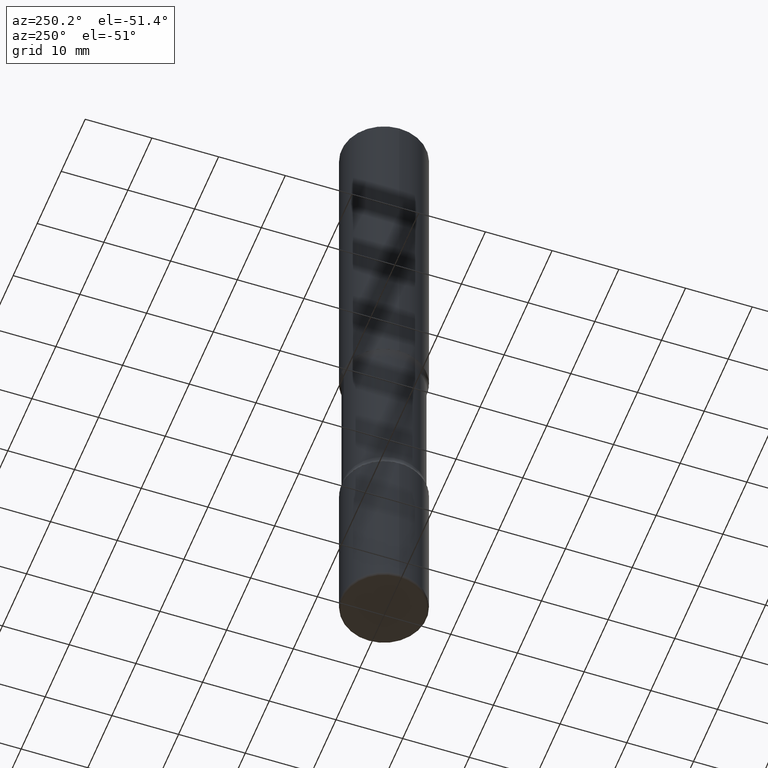
[diagram: clean part render]
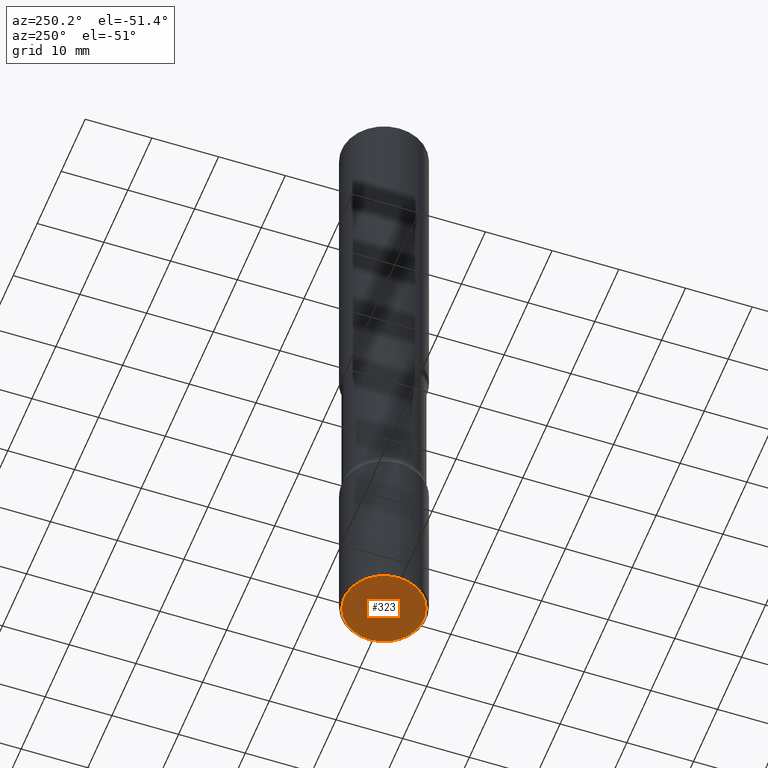
[diagram: same view with one face highlighted and labeled with its STEP entity id]
A machine part, auxiliary view. The second image highlights one B-rep face of the part: STEP entity #323.
In plain terms, the highlighted planar face has unit normal (0, -0, -1).
Its self-contained STEP definition (entity closure, byte-faithful):
#43 = FACE_OUTER_BOUND ( 'NONE', #333, .T. ) ;
#123 = DIRECTION ( 'NONE',  ( 1.000000000000000000, -6.982962677686268288E-15, 0.000000000000000000 ) ) ;
#141 = AXIS2_PLACEMENT_3D ( 'NONE', #339, #168, #386 ) ;
#148 = CIRCLE ( 'NONE', #428, 0.2350000000000003753 ) ;
#154 = DIRECTION ( 'NONE',  ( -2.445468806185136597E-29, 3.491481338843145583E-15, 1.000000000000000000 ) ) ;
#167 = ORIENTED_EDGE ( 'NONE', *, *, #513, .F. ) ;
#168 = DIRECTION ( 'NONE',  ( 2.438088387897960049E-29, -3.491481338843145188E-15, -1.000000000000000000 ) ) ;
#189 = EDGE_CURVE ( 'NONE', #444, #346, #367, .T. ) ;
#201 = ORIENTED_EDGE ( 'NONE', *, *, #189, .F. ) ;
#224 = AXIS2_PLACEMENT_3D ( 'NONE', #374, #154, #123 ) ;
#323 = ADVANCED_FACE ( 'NONE', ( #43 ), #424, .T. ) ;
#333 = EDGE_LOOP ( 'NONE', ( #201, #167 ) ) ;
#339 = CARTESIAN_POINT ( 'NONE',  ( 3.287784133380669782E-29, -2.326583341891048903E-14, -4.000000000000000000 ) ) ;
#346 = VERTEX_POINT ( 'NONE', #476 ) ;
#367 = CIRCLE ( 'NONE', #224, 0.2350000000000003753 ) ;
#374 = CARTESIAN_POINT ( 'NONE',  ( 9.781875224740547508E-29, -1.396592535537258391E-14, -4.000000000000000888 ) ) ;
#375 = CARTESIAN_POINT ( 'NONE',  ( 9.781875224740547508E-29, -1.396592535537258391E-14, -4.000000000000000888 ) ) ;
#384 = DIRECTION ( 'NONE',  ( 1.000000000000000000, -6.982962677686268288E-15, 0.000000000000000000 ) ) ;
#386 = DIRECTION ( 'NONE',  ( -1.000000000000000000, 6.982962677686265922E-15, -4.876176775795935793E-29 ) ) ;
#424 = PLANE ( 'NONE',  #141 ) ;
#428 = AXIS2_PLACEMENT_3D ( 'NONE', #375, #511, #384 ) ;
#436 = CARTESIAN_POINT ( 'NONE',  ( 0.2350000000000003753, -1.560692158462886037E-14, -4.000000000000000888 ) ) ;
#444 = VERTEX_POINT ( 'NONE', #436 ) ;
#476 = CARTESIAN_POINT ( 'NONE',  ( -0.2350000000000003753, -1.221667311111301332E-14, -4.000000000000000888 ) ) ;
#511 = DIRECTION ( 'NONE',  ( -2.445468806185136597E-29, 3.491481338843145583E-15, 1.000000000000000000 ) ) ;
#513 = EDGE_CURVE ( 'NONE', #346, #444, #148, .T. ) ;